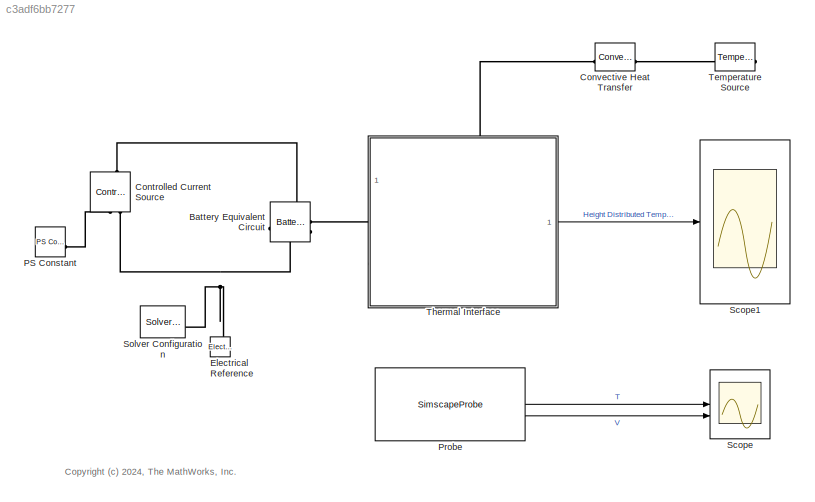
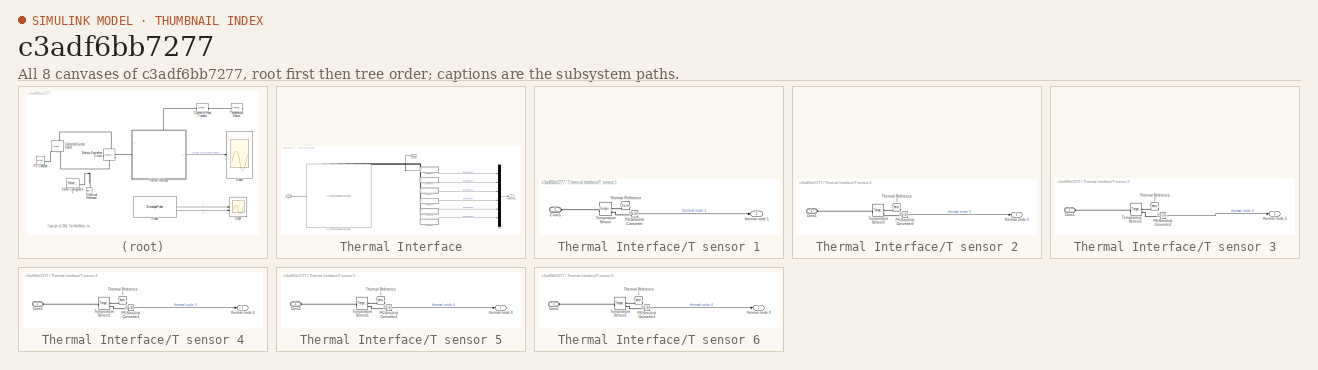
[diagram: thumbnail index - all 8 canvases of the model, root first then tree order]
MODEL slx_c3adf6bb7277
KIND model
CONFIG AbsTol = auto
CONFIG EnableMultiTasking = off
CONFIG FixedStep = auto
CONFIG MaxStep = auto
CONFIG MinStep = auto
CONFIG RelTol = 1e-4
CONFIG SampleTimeConstraint = Unconstrained
CONFIG SolverName = VariableStepAuto
CONFIG StartTime = 0.0
CONFIG StopTime = 1000
BLOCK [Reference] Battery Equivalent Circuit  REF=batt_lib/Cells/Battery Equivalent
Circuit
  SourceBlock = batt_lib/Cells/Battery Equivalent\nCircuit
  SourceType = Battery Equivalent\nCircuit
BLOCK [Reference] Controlled Current Source  REF=fl_lib/Electrical/Electrical Sources/Controlled Current
Source
  NameLocation = right
  SourceBlock = fl_lib/Electrical/Electrical Sources/Controlled Current\nSource
  SourceType = Controlled Current\nSource
BLOCK [Reference] Convective Heat Transfer  REF=fl_lib/Thermal/Thermal Elements/Convective Heat
Transfer
  SourceBlock = fl_lib/Thermal/Thermal Elements/Convective Heat\nTransfer
  SourceType = Convective Heat\nTransfer
BLOCK [Reference] Electrical Reference  REF=fl_lib/Electrical/Electrical Elements/Electrical Reference
  NameLocation = right
  SourceBlock = fl_lib/Electrical/Electrical Elements/Electrical Reference
  SourceType = Electrical Reference
BLOCK [Reference] PS Constant  REF=fl_lib/Physical Signals/Sources/PS Constant
  SourceBlock = fl_lib/Physical Signals/Sources/PS Constant
  SourceType = PS Constant
BLOCK [SimscapeProbe] Probe
  BoundBlock = 1
  Variables = {"batteryTemperature":{"Unit":"K","PortLabel":"batteryTemperature","Probing":"ON"},"batteryVoltage":{"Unit":"V","PortLabel":"batteryVoltage","Probing":"ON"}}
BLOCK [Scope] Scope
  Floating = off
  NumInputPorts = 2
  ScopeSpecificationString = Simulink.scopes.TimeScopeBlockCfg('CurrentConfiguration', extmgr.ConfigurationSet(extmgr.Configuration('Core','General UI',true),extmgr.Configuration('Core','Source UI',true),extmgr.Configuration('Sources','WiredSimulink',true),extmgr.Configuration('Visuals','Time Domain',true,'SerializedDisplays',{struct('MinYLimReal','295.51757','MaxYLimReal','321.84185','YLabelReal','','MinYLimMag','295.51757',...<+2196ch>
BLOCK [Scope] Scope1
  Floating = off
  NumInputPorts = 1
  ScopeSpecificationString = Simulink.scopes.TimeScopeBlockCfg('CurrentConfiguration', extmgr.ConfigurationSet(extmgr.Configuration('Core','General UI',true),extmgr.Configuration('Core','Source UI',true),extmgr.Configuration('Sources','WiredSimulink',true,'DataLoggingVariableName','ScopeData1'),extmgr.Configuration('Visuals','Time Domain',true,'SerializedDisplays',{struct('MinYLimReal','296.63687','MaxYLimReal','327.84062','Y...<+1547ch>
BLOCK [Reference] Solver Configuration  REF=nesl_utility/Solver
Configuration
  SourceBlock = nesl_utility/Solver\nConfiguration
  SourceType = Solver\nConfiguration
BLOCK [Reference] Temperature Source  REF=fl_lib/Thermal/Thermal Sources/Temperature Source
  NameLocation = top
  SourceBlock = fl_lib/Thermal/Thermal Sources/Temperature Source
  SourceType = Temperature Source
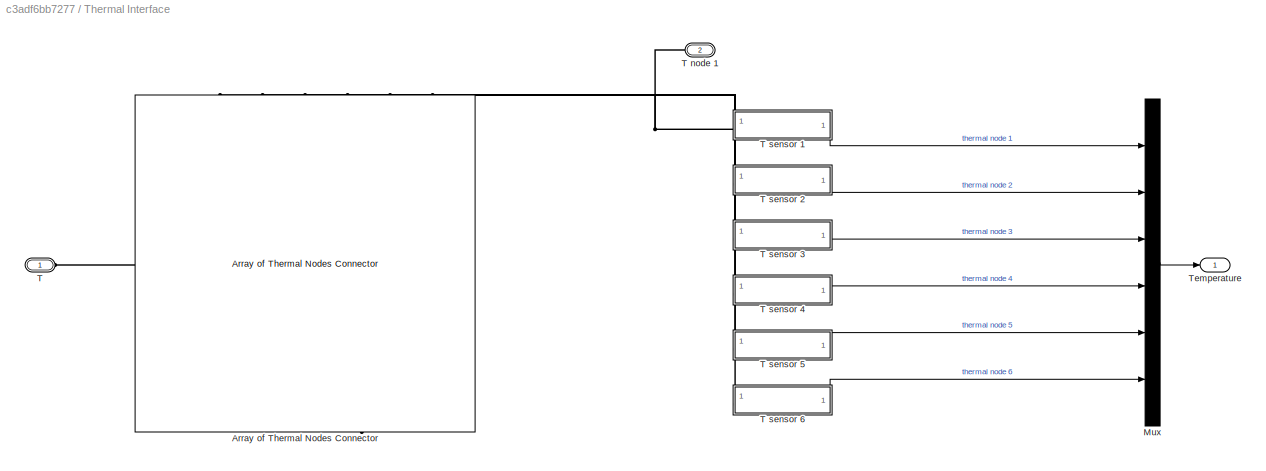
BLOCK [SubSystem] Thermal Interface
  PortSchema = {"entries":[{"content":{"sides":[{"content":{"connectorIds":["LConn1"]},"type":"ConnectorPlacement.EquallySpacedRectSide","uuid":"25488635-171d-4684-a7e4-a35c4d23970d"},{"content":{"connectorIds":["Out1"],"side":"RIGHT"},"type":"ConnectorPlacement.EquallySpacedRectSide","uuid":"438962aa-9c72-460f-b730-8b0e0500cc9a"},{"content":{"connectorIds":["LConn2"],"side":"TOP"},"type":"ConnectorPlacement.Equ...<+251ch>
BLOCK [Reference] Thermal Interface/Array of Thermal Nodes Connector  REF=batt_lib/Thermal/Array of Thermal
Nodes Connector
  NameLocation = left
  SourceBlock = batt_lib/Thermal/Array of Thermal\nNodes Connector
  SourceType = Array of Thermal\nNodes Connector
BLOCK [Mux] Thermal Interface/Mux
  DisplayOption = bar
  Inputs = 6
BLOCK [PMIOPort] Thermal Interface/T
  Side = Left
BLOCK [PMIOPort] Thermal Interface/T node 1
  Port = 2
  Side = Left
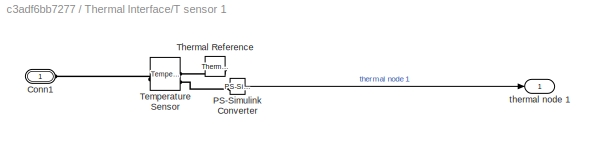
BLOCK [SubSystem] Thermal Interface/T sensor 1
BLOCK [PMIOPort] Thermal Interface/T sensor 1/Conn1
  Side = Left
BLOCK [Reference] Thermal Interface/T sensor 1/PS-Simulink Converter  REF=nesl_utility/PS-Simulink
Converter
  SourceBlock = nesl_utility/PS-Simulink\nConverter
  SourceType = PS-Simulink\nConverter
BLOCK [Reference] Thermal Interface/T sensor 1/Temperature Sensor  REF=fl_lib/Thermal/Thermal Sensors/Temperature Sensor
  SourceBlock = fl_lib/Thermal/Thermal Sensors/Temperature Sensor
  SourceType = Temperature Sensor
BLOCK [Reference] Thermal Interface/T sensor 1/Thermal Reference  REF=fl_lib/Thermal/Thermal Elements/Thermal Reference
  NameLocation = top
  SourceBlock = fl_lib/Thermal/Thermal Elements/Thermal Reference
  SourceType = Thermal Reference
BLOCK [Outport] Thermal Interface/T sensor 1/thermal node 1
BLOCK [SubSystem] Thermal Interface/T sensor 2
BLOCK [PMIOPort] Thermal Interface/T sensor 2/Conn1
  Side = Left
BLOCK [Reference] Thermal Interface/T sensor 2/PS-Simulink Converter3  REF=nesl_utility/PS-Simulink
Converter
  SourceBlock = nesl_utility/PS-Simulink\nConverter
  SourceType = PS-Simulink\nConverter
BLOCK [Reference] Thermal Interface/T sensor 2/Temperature Sensor3  REF=fl_lib/Thermal/Thermal Sensors/Temperature Sensor
  SourceBlock = fl_lib/Thermal/Thermal Sensors/Temperature Sensor
  SourceType = Temperature Sensor
BLOCK [Reference] Thermal Interface/T sensor 2/Thermal Reference3  REF=fl_lib/Thermal/Thermal Elements/Thermal Reference
  NameLocation = top
  SourceBlock = fl_lib/Thermal/Thermal Elements/Thermal Reference
  SourceType = Thermal Reference
BLOCK [Outport] Thermal Interface/T sensor 2/thermal node 2
BLOCK [SubSystem] Thermal Interface/T sensor 3
BLOCK [PMIOPort] Thermal Interface/T sensor 3/Conn1
  Side = Left
BLOCK [Reference] Thermal Interface/T sensor 3/PS-Simulink Converter2  REF=nesl_utility/PS-Simulink
Converter
  SourceBlock = nesl_utility/PS-Simulink\nConverter
  SourceType = PS-Simulink\nConverter
BLOCK [Reference] Thermal Interface/T sensor 3/Temperature Sensor2  REF=fl_lib/Thermal/Thermal Sensors/Temperature Sensor
  SourceBlock = fl_lib/Thermal/Thermal Sensors/Temperature Sensor
  SourceType = Temperature Sensor
BLOCK [Reference] Thermal Interface/T sensor 3/Thermal Reference2  REF=fl_lib/Thermal/Thermal Elements/Thermal Reference
  NameLocation = top
  SourceBlock = fl_lib/Thermal/Thermal Elements/Thermal Reference
  SourceType = Thermal Reference
BLOCK [Outport] Thermal Interface/T sensor 3/thermal node 3
BLOCK [SubSystem] Thermal Interface/T sensor 4
BLOCK [PMIOPort] Thermal Interface/T sensor 4/Conn1
  Side = Left
BLOCK [Reference] Thermal Interface/T sensor 4/PS-Simulink Converter1  REF=nesl_utility/PS-Simulink
Converter
  SourceBlock = nesl_utility/PS-Simulink\nConverter
  SourceType = PS-Simulink\nConverter
BLOCK [Reference] Thermal Interface/T sensor 4/Temperature Sensor1  REF=fl_lib/Thermal/Thermal Sensors/Temperature Sensor
  SourceBlock = fl_lib/Thermal/Thermal Sensors/Temperature Sensor
  SourceType = Temperature Sensor
BLOCK [Reference] Thermal Interface/T sensor 4/Thermal Reference1  REF=fl_lib/Thermal/Thermal Elements/Thermal Reference
  NameLocation = top
  SourceBlock = fl_lib/Thermal/Thermal Elements/Thermal Reference
  SourceType = Thermal Reference
BLOCK [Outport] Thermal Interface/T sensor 4/thermal node 4
BLOCK [SubSystem] Thermal Interface/T sensor 5
BLOCK [PMIOPort] Thermal Interface/T sensor 5/Conn1
  Side = Left
BLOCK [Reference] Thermal Interface/T sensor 5/PS-Simulink Converter1  REF=nesl_utility/PS-Simulink
Converter
  SourceBlock = nesl_utility/PS-Simulink\nConverter
  SourceType = PS-Simulink\nConverter
BLOCK [Reference] Thermal Interface/T sensor 5/Temperature Sensor1  REF=fl_lib/Thermal/Thermal Sensors/Temperature Sensor
  SourceBlock = fl_lib/Thermal/Thermal Sensors/Temperature Sensor
  SourceType = Temperature Sensor
BLOCK [Reference] Thermal Interface/T sensor 5/Thermal Reference1  REF=fl_lib/Thermal/Thermal Elements/Thermal Reference
  NameLocation = top
  SourceBlock = fl_lib/Thermal/Thermal Elements/Thermal Reference
  SourceType = Thermal Reference
BLOCK [Outport] Thermal Interface/T sensor 5/thermal node 4
BLOCK [SubSystem] Thermal Interface/T sensor 6
BLOCK [PMIOPort] Thermal Interface/T sensor 6/Conn1
  Side = Left
BLOCK [Reference] Thermal Interface/T sensor 6/PS-Simulink Converter1  REF=nesl_utility/PS-Simulink
Converter
  SourceBlock = nesl_utility/PS-Simulink\nConverter
  SourceType = PS-Simulink\nConverter
BLOCK [Reference] Thermal Interface/T sensor 6/Temperature Sensor1  REF=fl_lib/Thermal/Thermal Sensors/Temperature Sensor
  SourceBlock = fl_lib/Thermal/Thermal Sensors/Temperature Sensor
  SourceType = Temperature Sensor
BLOCK [Reference] Thermal Interface/T sensor 6/Thermal Reference1  REF=fl_lib/Thermal/Thermal Elements/Thermal Reference
  NameLocation = top
  SourceBlock = fl_lib/Thermal/Thermal Elements/Thermal Reference
  SourceType = Thermal Reference
BLOCK [Outport] Thermal Interface/T sensor 6/thermal node 4
BLOCK [Outport] Thermal Interface/Temperature
ANNOTATION (root): <copyright redacted>
LINE Probe:1 -> Scope:1
LINE Probe:2 -> Scope:2
LINE Thermal Interface/Mux:1 -> Thermal Interface/Temperature:1
LINE Thermal Interface/T sensor 1/PS-Simulink Converter:1 -> Thermal Interface/T sensor 1/thermal node 1:1
LINE Thermal Interface/T sensor 1:1 -> Thermal Interface/Mux:1
LINE Thermal Interface/T sensor 2/PS-Simulink Converter3:1 -> Thermal Interface/T sensor 2/thermal node 2:1
LINE Thermal Interface/T sensor 2:1 -> Thermal Interface/Mux:2
LINE Thermal Interface/T sensor 3/PS-Simulink Converter2:1 -> Thermal Interface/T sensor 3/thermal node 3:1
LINE Thermal Interface/T sensor 3:1 -> Thermal Interface/Mux:3
LINE Thermal Interface/T sensor 4/PS-Simulink Converter1:1 -> Thermal Interface/T sensor 4/thermal node 4:1
LINE Thermal Interface/T sensor 4:1 -> Thermal Interface/Mux:4
LINE Thermal Interface/T sensor 5/PS-Simulink Converter1:1 -> Thermal Interface/T sensor 5/thermal node 4:1
LINE Thermal Interface/T sensor 5:1 -> Thermal Interface/Mux:5
LINE Thermal Interface/T sensor 6/PS-Simulink Converter1:1 -> Thermal Interface/T sensor 6/thermal node 4:1
LINE Thermal Interface/T sensor 6:1 -> Thermal Interface/Mux:6
LINE Thermal Interface:1 -> Scope1:1
PLINE Battery Equivalent Circuit:LConn1 -- Controlled Current Source:LConn1
PLINE Battery Equivalent Circuit:RConn1 -- Thermal Interface:LConn1
PNET net1: Battery Equivalent Circuit:RConn2 -- Controlled Current Source:RConn2 -- Electrical Reference:LConn1 -- Solver Configuration:RConn1
PLINE Controlled Current Source:RConn1 -- PS Constant:RConn1
PLINE Convective Heat Transfer:LConn1 -- Thermal Interface:LConn2
PLINE Convective Heat Transfer:RConn1 -- Temperature Source:LConn1
PNET net2: Thermal Interface/Array of Thermal Nodes Connector:LConn1 -- Thermal Interface/T node 1:RConn1 -- Thermal Interface/T sensor 1:LConn1
PLINE Thermal Interface/Array of Thermal Nodes Connector:LConn2 -- Thermal Interface/T sensor 2:LConn1
PLINE Thermal Interface/Array of Thermal Nodes Connector:LConn3 -- Thermal Interface/T sensor 3:LConn1
PLINE Thermal Interface/Array of Thermal Nodes Connector:LConn4 -- Thermal Interface/T sensor 4:LConn1
PLINE Thermal Interface/Array of Thermal Nodes Connector:LConn5 -- Thermal Interface/T sensor 5:LConn1
PLINE Thermal Interface/Array of Thermal Nodes Connector:LConn6 -- Thermal Interface/T sensor 6:LConn1
PLINE Thermal Interface/Array of Thermal Nodes Connector:RConn1 -- Thermal Interface/T:RConn1
PLINE Thermal Interface/T sensor 1/Conn1:RConn1 -- Thermal Interface/T sensor 1/Temperature Sensor:LConn1
PLINE Thermal Interface/T sensor 1/PS-Simulink Converter:LConn1 -- Thermal Interface/T sensor 1/Temperature Sensor:RConn2
PLINE Thermal Interface/T sensor 1/Temperature Sensor:RConn1 -- Thermal Interface/T sensor 1/Thermal Reference:LConn1
PLINE Thermal Interface/T sensor 2/Conn1:RConn1 -- Thermal Interface/T sensor 2/Temperature Sensor3:LConn1
PLINE Thermal Interface/T sensor 2/PS-Simulink Converter3:LConn1 -- Thermal Interface/T sensor 2/Temperature Sensor3:RConn2
PLINE Thermal Interface/T sensor 2/Temperature Sensor3:RConn1 -- Thermal Interface/T sensor 2/Thermal Reference3:LConn1
PLINE Thermal Interface/T sensor 3/Conn1:RConn1 -- Thermal Interface/T sensor 3/Temperature Sensor2:LConn1
PLINE Thermal Interface/T sensor 3/PS-Simulink Converter2:LConn1 -- Thermal Interface/T sensor 3/Temperature Sensor2:RConn2
PLINE Thermal Interface/T sensor 3/Temperature Sensor2:RConn1 -- Thermal Interface/T sensor 3/Thermal Reference2:LConn1
PLINE Thermal Interface/T sensor 4/Conn1:RConn1 -- Thermal Interface/T sensor 4/Temperature Sensor1:LConn1
PLINE Thermal Interface/T sensor 4/PS-Simulink Converter1:LConn1 -- Thermal Interface/T sensor 4/Temperature Sensor1:RConn2
PLINE Thermal Interface/T sensor 4/Temperature Sensor1:RConn1 -- Thermal Interface/T sensor 4/Thermal Reference1:LConn1
PLINE Thermal Interface/T sensor 5/Conn1:RConn1 -- Thermal Interface/T sensor 5/Temperature Sensor1:LConn1
PLINE Thermal Interface/T sensor 5/PS-Simulink Converter1:LConn1 -- Thermal Interface/T sensor 5/Temperature Sensor1:RConn2
PLINE Thermal Interface/T sensor 5/Temperature Sensor1:RConn1 -- Thermal Interface/T sensor 5/Thermal Reference1:LConn1
PLINE Thermal Interface/T sensor 6/Conn1:RConn1 -- Thermal Interface/T sensor 6/Temperature Sensor1:LConn1
PLINE Thermal Interface/T sensor 6/PS-Simulink Converter1:LConn1 -- Thermal Interface/T sensor 6/Temperature Sensor1:RConn2
PLINE Thermal Interface/T sensor 6/Temperature Sensor1:RConn1 -- Thermal Interface/T sensor 6/Thermal Reference1:LConn1
note: PNET lines group multi-terminal physical nets as a canonical sorted terminal list (undirected conserving connections); 2-terminal nets keep the pairwise PLINE form
